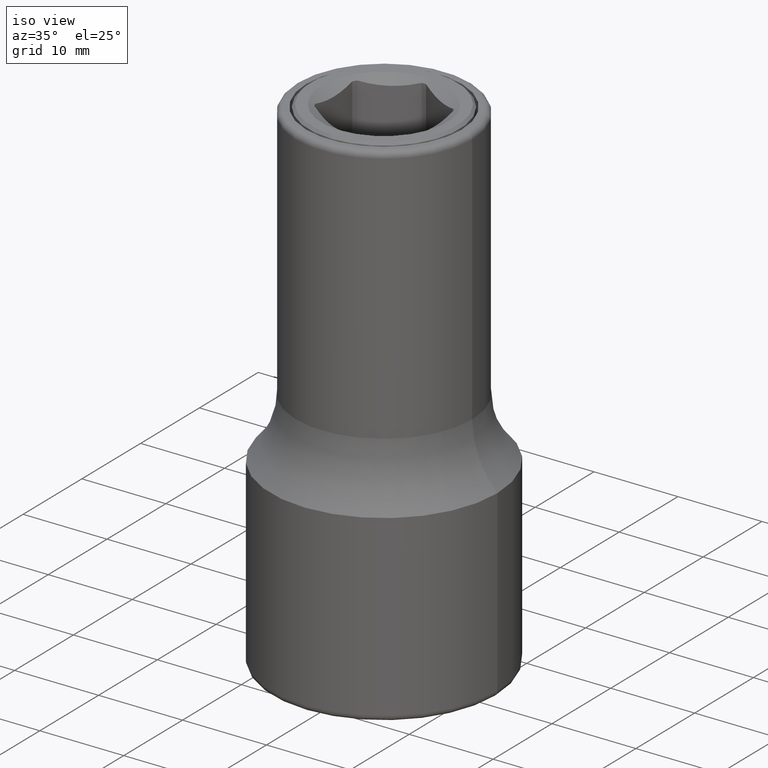
[diagram: clean part render]
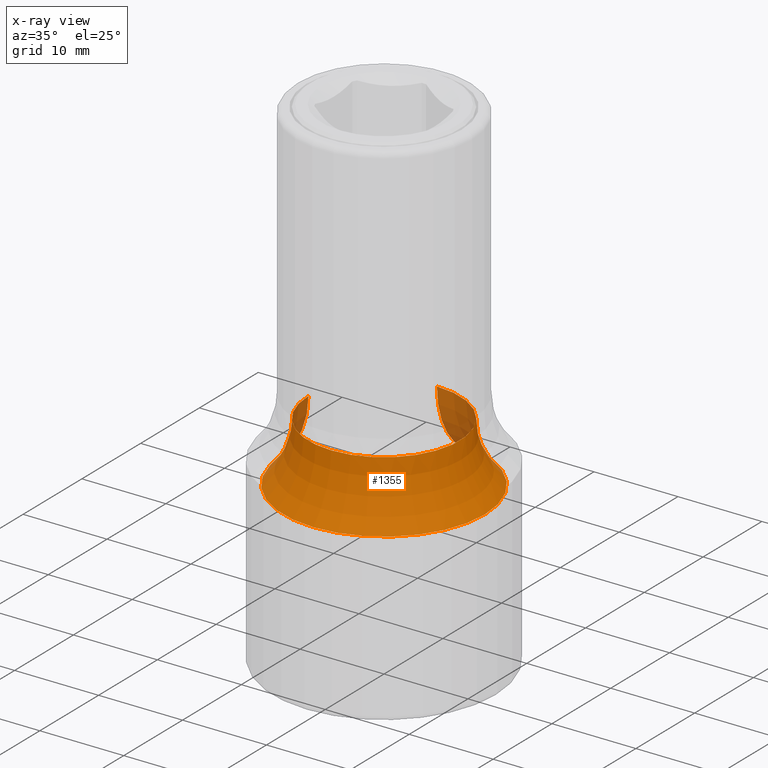
[diagram: x-ray — body ghosted, one internal face saturated and labeled with its STEP entity id]
A machine part, iso view, then the same camera in x-ray: the body is ghosted and one INTERNAL B-rep face — a face not visible from any outside direction — is saturated and labeled: STEP entity #1355.
In plain terms, the highlighted toroidal blend (fillet) surface has major radius 19 mm and minor (blend) radius 10 mm.
Its self-contained STEP definition (entity closure, byte-faithful):
#162=CARTESIAN_POINT('',(0.E0,0.E0,1.900000002322E1));
#163=DIRECTION('',(0.E0,0.E0,1.E0));
#164=DIRECTION('',(1.E0,0.E0,0.E0));
#165=AXIS2_PLACEMENT_3D('',#162,#163,#164);
#405=CARTESIAN_POINT('',(0.E0,0.E0,2.614142765401E1));
#406=DIRECTION('',(0.E0,0.E0,1.E0));
#407=DIRECTION('',(0.E0,-1.E0,0.E0));
#408=AXIS2_PLACEMENT_3D('',#405,#406,#407);
#410=CARTESIAN_POINT('',(0.E0,0.E0,1.899999922547E1));
#411=DIRECTION('',(0.E0,0.E0,-1.E0));
#412=DIRECTION('',(1.E0,0.E0,0.E0));
#413=AXIS2_PLACEMENT_3D('',#410,#411,#412);
#415=CARTESIAN_POINT('',(-1.9E1,1.020185975051E-13,2.614142765401E1));
#416=DIRECTION('',(0.E0,-1.E0,0.E0));
#417=DIRECTION('',(6.999999988390E-1,0.E0,-7.141428439922E-1));
#418=AXIS2_PLACEMENT_3D('',#415,#416,#417);
#890=CARTESIAN_POINT('',(0.E0,0.E0,2.614142845177E1));
#891=DIRECTION('',(0.E0,0.E0,1.E0));
#892=DIRECTION('',(-1.E0,0.E0,0.E0));
#893=AXIS2_PLACEMENT_3D('',#890,#891,#892);
#900=CARTESIAN_POINT('',(2.719965919162E-11,1.9E1,2.614142765401E1));
#901=DIRECTION('',(-1.E0,1.431561466592E-12,0.E0));
#902=DIRECTION('',(-1.002093736317E-12,-7.000001166469E-1,-7.141427285174E-1));
#903=AXIS2_PLACEMENT_3D('',#900,#901,#902);
#1020=CARTESIAN_POINT('',(1.2E1,0.E0,1.900000002322E1));
#1021=CARTESIAN_POINT('',(2.438784550156E-12,1.2E1,1.900000002322E1));
#1022=VERTEX_POINT('',#1020);
#1023=VERTEX_POINT('',#1021);
#1024=CARTESIAN_POINT('',(-1.2E1,0.E0,1.899999922547E1));
#1025=VERTEX_POINT('',#1024);
#1026=CARTESIAN_POINT('',(0.E0,9.E0,2.614142765401E1));
#1027=CARTESIAN_POINT('',(-9.E0,0.E0,2.614142765401E1));
#1028=VERTEX_POINT('',#1026);
#1029=VERTEX_POINT('',#1027);
#1030=CARTESIAN_POINT('',(0.E0,-9.E0,2.614142845177E1));
#1031=VERTEX_POINT('',#1030);
#1338=CARTESIAN_POINT('',(0.E0,0.E0,2.614142765401E1));
#1339=DIRECTION('',(0.E0,0.E0,1.E0));
#1340=DIRECTION('',(-1.177698875442E-2,-9.999306488631E-1,0.E0));
#1341=AXIS2_PLACEMENT_3D('',#1338,#1339,#1340);
#1342=TOROIDAL_SURFACE('',#1341,1.9E1,1.E1);
#1344=ORIENTED_EDGE('',*,*,#1343,.T.);
#1346=ORIENTED_EDGE('',*,*,#1345,.F.);
#1347=ORIENTED_EDGE('',*,*,#1181,.F.);
#1348=ORIENTED_EDGE('',*,*,#1290,.T.);
#1350=ORIENTED_EDGE('',*,*,#1349,.T.);
#1352=ORIENTED_EDGE('',*,*,#1351,.T.);
#1353=EDGE_LOOP('',(#1344,#1346,#1347,#1348,#1350,#1352));
#1354=FACE_OUTER_BOUND('',#1353,.F.);
#1355=ADVANCED_FACE('',(#1354),#1342,.F.);
#166=CIRCLE('',#165,1.2E1);
#409=CIRCLE('',#408,9.E0);
#414=CIRCLE('',#413,1.2E1);
#419=CIRCLE('',#418,1.E1);
#894=CIRCLE('',#893,9.E0);
#904=CIRCLE('',#903,1.E1);
#1181=EDGE_CURVE('',#1022,#1023,#166,.T.);
#1290=EDGE_CURVE('',#1022,#1025,#414,.T.);
#1343=EDGE_CURVE('',#1031,#1028,#409,.T.);
#1345=EDGE_CURVE('',#1023,#1028,#904,.T.);
#1349=EDGE_CURVE('',#1025,#1029,#419,.T.);
#1351=EDGE_CURVE('',#1029,#1031,#894,.T.);